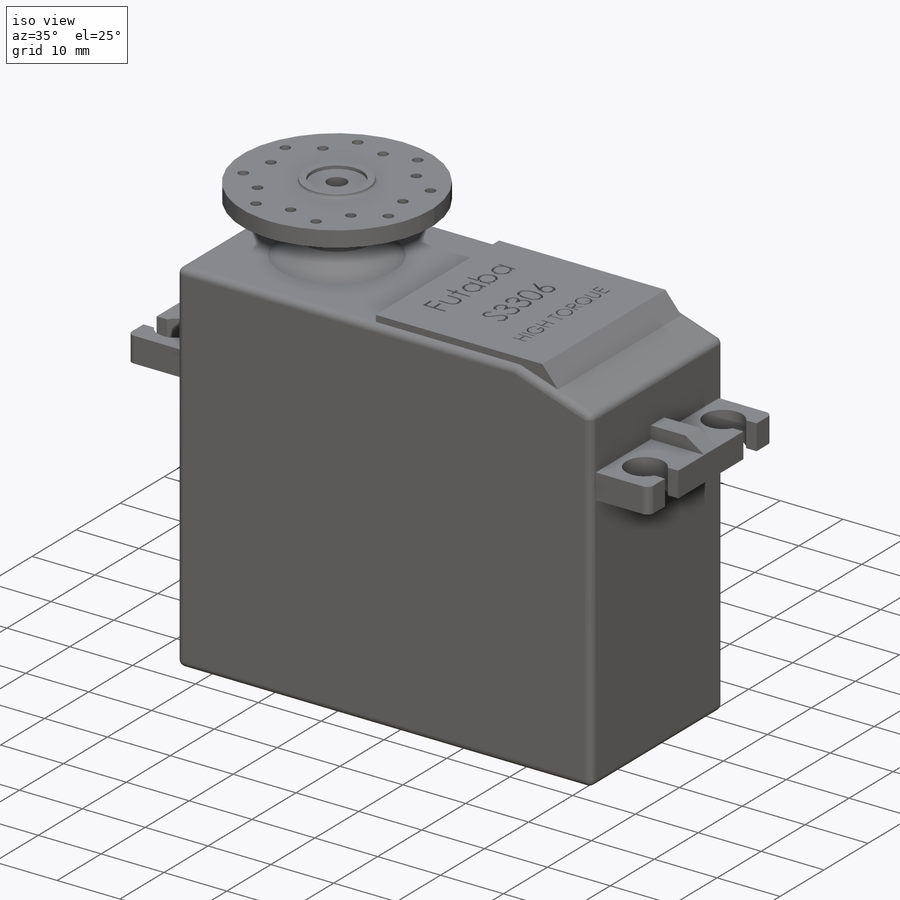
[diagram: iso view]
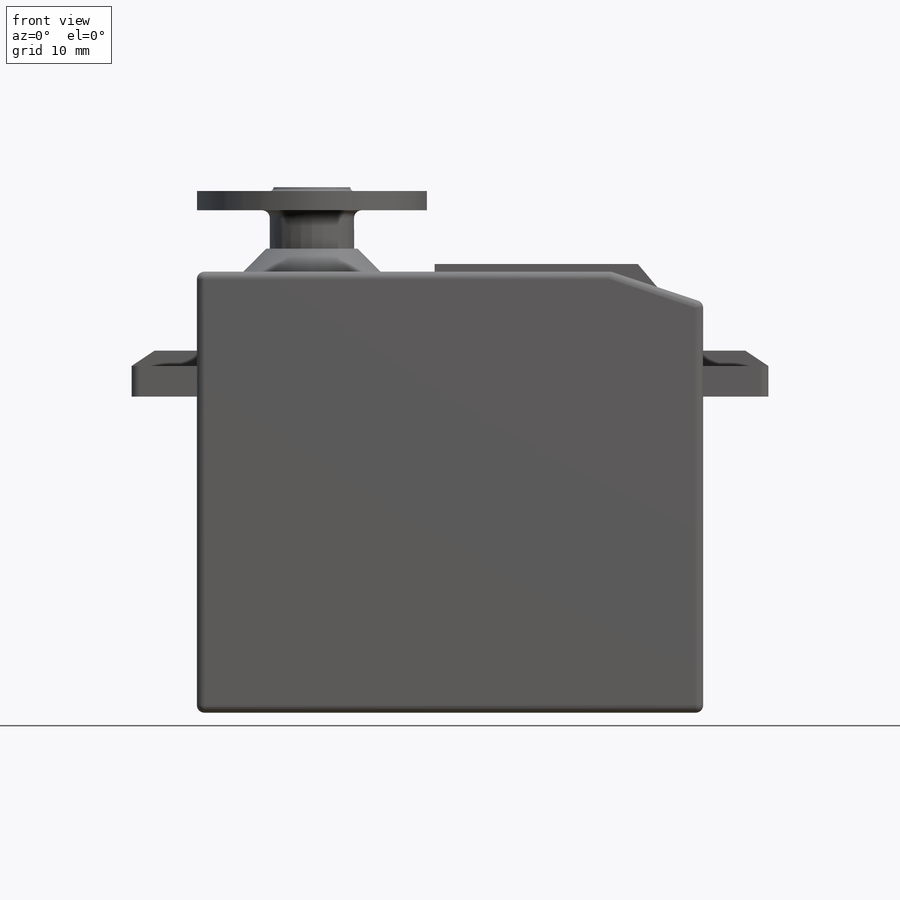
[diagram: front view]
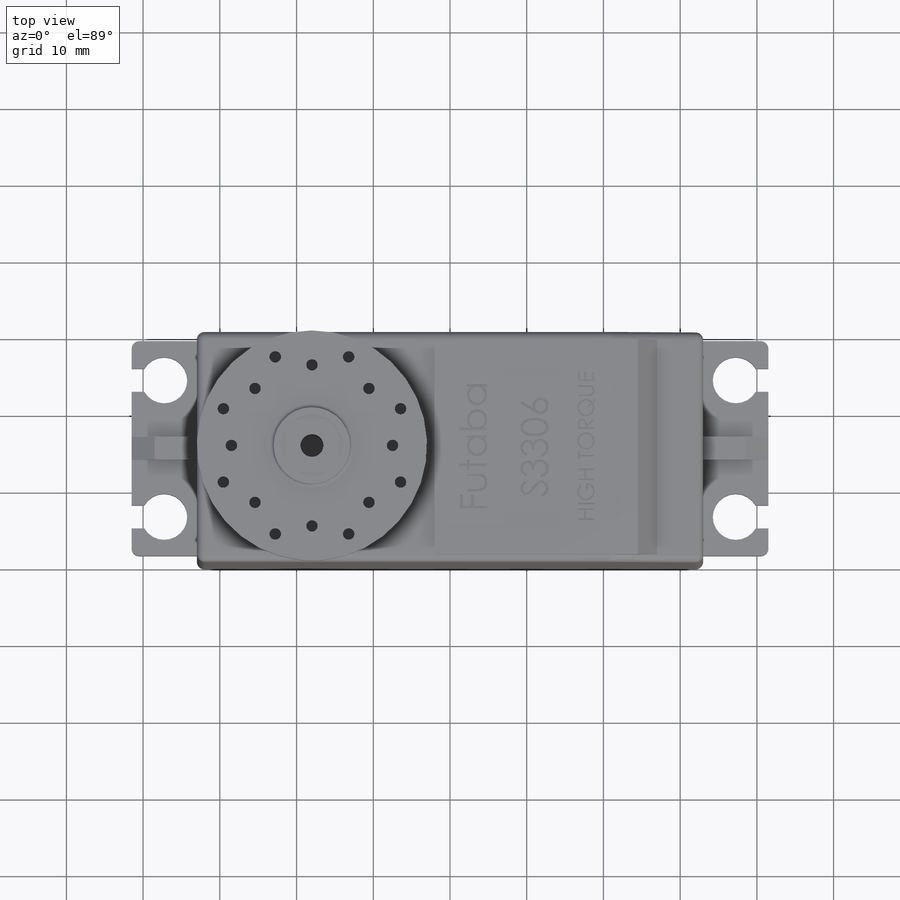
[diagram: top view]
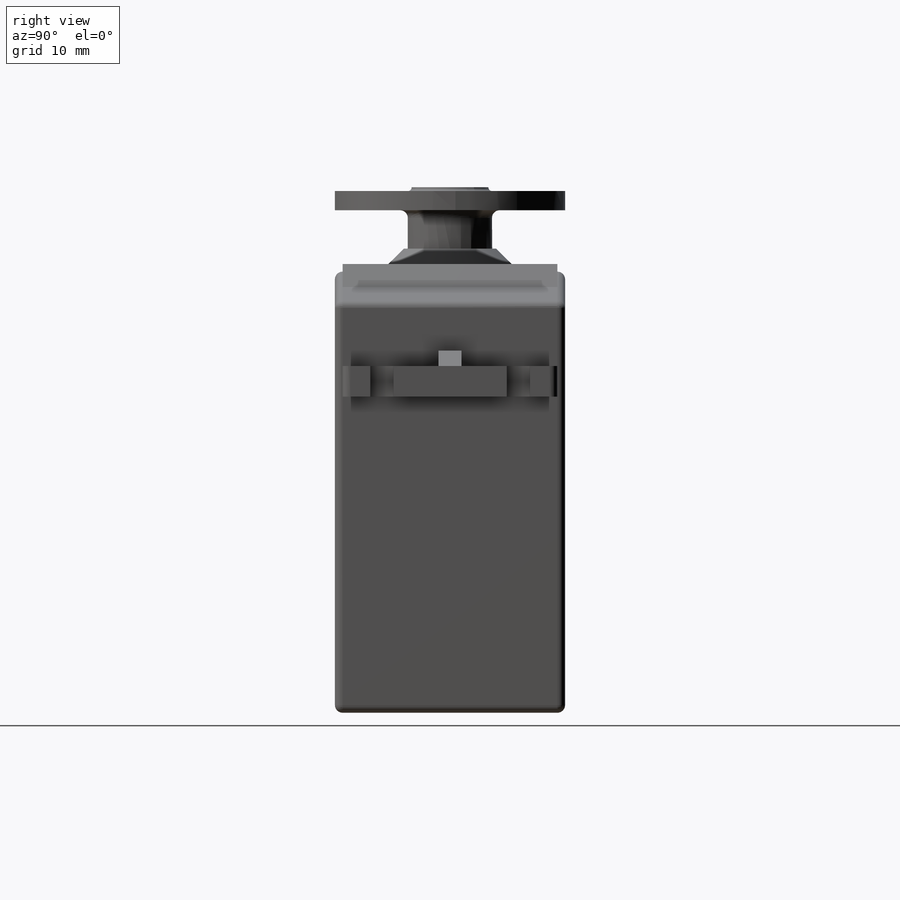
[diagram: right view]
SOLIDWORKS PART (.sldprt)
format: sldprt  version: not decoded by parser v0  size: 987,136 bytes
history: native  units: mm
features: sketch x20, cut_extrude x11, extrude x9, fillet x4, plane x3, material x1, chamfer x1 (+8 scaffold rows collapsed)
feature tree (57):
  scaffold x8  (default folders/planes/origin — collapsed)
  material  "Matériau <non spécifié>"
  plane  "Plan de face"
  plane  "Plan de dessus"
  plane  "Plan de droite"
  sketch  "Esquisse1"  dims[D1=66.0mm D2=33.0mm D3=57.5mm D4=28.75mm]
  extrude  "Boss.-Extru.1"  Depth=30mm
  sketch  "Esquisse3"  dims[D1=12.0mm D2=4.0mm]
  cut_extrude  "Enlèv. mat.-Extru.2"  [1 undecoded]
  sketch  "Esquisse4"  dims[D1=16.3mm D2=4.0mm D3=28.0mm D4=1.0mm]
  extrude  "Boss.-Extru.2"  Depth=8.5mm
  sketch  "Esquisse5"  dims[D1=16.3mm D2=28.0mm D3=1.0mm D4=4.0mm]
  extrude  "Boss.-Extru.3"  Depth=8.5mm
  sketch  "Esquisse7"  dims[D3=6.0mm D1=14.0mm D2=8.9mm D4=4.25mm D5=33.0mm]
  cut_extrude  "Enlèv. mat.-Extru.3"  [1 undecoded]
  sketch  "Esquisse8"  dims[D1=14.0mm D2=33.0mm D3=3.0mm D4=7.4mm D5=0.0mm D6=4.5mm]
  cut_extrude  "Enlèv. mat.-Extru.4"  [1 undecoded]
  sketch  "Esquisse9"  dims[D1=3.0mm D2=33.0mm D3=14.0mm D4=1.5mm D5=0.0mm D6=0.0mm]
  extrude  "Boss.-Extru.4"  Depth=2mm
  sketch  "Esquisse10"  dims[D1=3.0mm]
  cut_extrude  "Enlèv. mat.-Extru.5"  [1 undecoded]
  sketch  "Esquisse11"  dims[c1.D1=35.0mm c1.D2=1.0mm c1.D3=3.0mm c2.D3=130.0deg c2.D4=6.0mm]
  extrude  "Boss.-Extru.5"  Depth=30mm
  sketch  "Esquisse12"  dims[D1=15.0mm D2=55.0mm D3=1.0mm]
  cut_extrude  "Enlèv. mat.-Extru.6"  Depth=1mm
  sketch  "Esquisse13"  dims[c1.D1=3.0mm c2.D1=130.0deg c2.D2=1.0mm c3.D2=~111.801409deg c3.D3=~5.385165mm c4.D3=~176.633539deg c4.D2=~5.385165mm c5.D2=180.0deg c5.D3=1.0mm c5.D1=~7.016703mm c6.D1=180.0deg]
  cut_extrude  "Enlèv. mat.-Extru.7"  Depth=1mm
  sketch  "Esquisse14"  dims[c1.D1=~6.690255mm c2.D1=180.0deg]
  cut_extrude  "Enlèv. mat.-Extru.8"  Depth=1mm
  fillet  "Congé1"  Radius=1mm
  fillet  "Congé2"  Radius=1mm
  sketch  "Esquisse15"  dims[D1=18.0mm D2=15.0mm D3=15.0mm]
  extrude  "Boss.-Extru.6"  Depth=3mm
  chamfer  "Chanfrein1"  Distance=3mm Angle=45deg
  sketch  "Esquisse18"  dims[D1=11.0mm D2=~1.005794mm]
  extrude  "Boss.-Extru.7"  Depth=5mm
  sketch  "Esquisse19"  dims[D1=30.0mm]
  extrude  "Boss.-Extru.8"  Depth=2.5mm
  fillet  "Congé3"  Radius=1mm
  sketch  "Esquisse20"  dims[D1=10.0mm]
  extrude  "Boss.-Extru.9"  Depth=0.5mm
  sketch  "Esquisse21"  dims[D1=8.0mm]
  cut_extrude  "Enlèv. mat.-Extru.9"  Depth=0.5mm
  fillet  "Congé4"  Radius=0.5mm
  sketch  "Esquisse22"  dims[D1=3.0mm]
  cut_extrude  "Enlèv. mat.-Extru.10"  Depth=10.5mm
  sketch  "Esquisse23"  dims[c1.D1=1.5mm c1.D6=1.5mm c1.D2=15.0mm c1.D3=0.0mm c1.D4=~41.075604mm c2.D4=~0.86431deg c3.D4=12.5mm c4.D4=0.0deg c4.D5=10.5mm c4.D7=~60.314682mm c5.D7=22.5deg c5.D8=~65.479644mm c6.D8=67.5deg c6.D9=12.5mm c6.D10=8.0]
  cut_extrude  "Enlèv. mat.-Extru.11"  [1 undecoded]
  sketch  "Esquisse24"
  cut_extrude  "Enlèv. mat.-Extru.12"  Depth=0.5mm
decode coverage: 39 of 45 modeling features carry decoded parameters
note: ~ marks probable driven/reference dimensions
note: 5 parameter values undecoded
summary: no parameter record found for 5 features
note: suppression state not decoded; provenance and decode notes live in map.json
